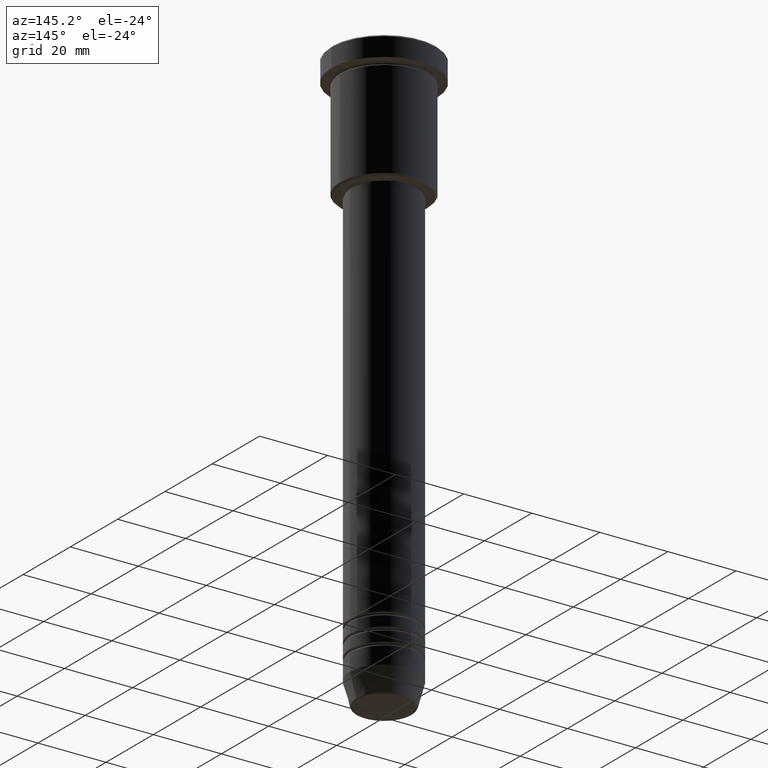
[diagram: clean part render]
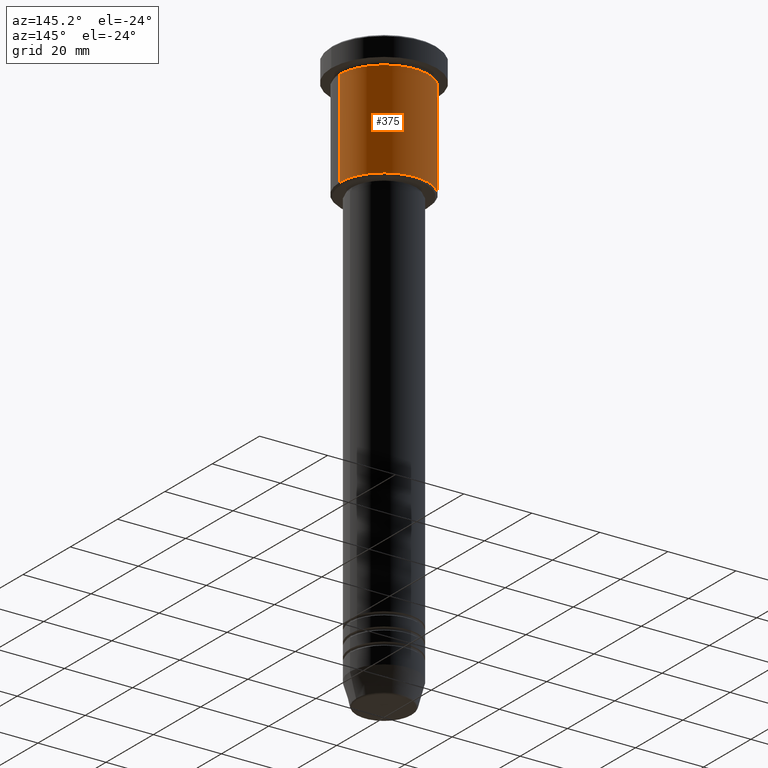
[diagram: same view with one face highlighted and labeled with its STEP entity id]
A machine part, auxiliary view. The second image highlights one B-rep face of the part: STEP entity #375.
In plain terms, the highlighted cylindrical surface (partial cylindrical patch) has radius 13 mm, axis along (-0, -0, 1).
Its self-contained STEP definition (entity closure, byte-faithful):
#19 = CIRCLE ( 'NONE', #720, 13.00000000000000178 ) ;
#186 = DIRECTION ( 'NONE',  ( -1.000000000000000000, 0.000000000000000000, 0.000000000000000000 ) ) ;
#234 = CARTESIAN_POINT ( 'NONE',  ( 13.00000000000000178, 0.000000000000000000, -6.999999999999995559 ) ) ;
#248 = CARTESIAN_POINT ( 'NONE',  ( 0.000000000000000000, 0.000000000000000000, -35.49999999999999289 ) ) ;
#257 = AXIS2_PLACEMENT_3D ( 'NONE', #281, #842, #641 ) ;
#281 = CARTESIAN_POINT ( 'NONE',  ( 0.000000000000000000, 0.000000000000000000, 0.000000000000000000 ) ) ;
#284 = AXIS2_PLACEMENT_3D ( 'NONE', #978, #1158, #700 ) ;
#294 = DIRECTION ( 'NONE',  ( -0.000000000000000000, -0.000000000000000000, 1.000000000000000000 ) ) ;
#340 = EDGE_CURVE ( 'NONE', #1180, #478, #19, .T. ) ;
#351 = CARTESIAN_POINT ( 'NONE',  ( 13.00000000000000178, 0.000000000000000000, 0.000000000000000000 ) ) ;
#375 = ADVANCED_FACE ( 'NONE', ( #472 ), #836, .T. ) ;
#411 = CARTESIAN_POINT ( 'NONE',  ( -13.00000000000000178, 1.592040838891559293E-15, -35.49999999999999289 ) ) ;
#470 = ORIENTED_EDGE ( 'NONE', *, *, #654, .F. ) ;
#472 = FACE_OUTER_BOUND ( 'NONE', #655, .T. ) ;
#474 = CIRCLE ( 'NONE', #284, 13.00000000000000178 ) ;
#478 = VERTEX_POINT ( 'NONE', #411 ) ;
#486 = VERTEX_POINT ( 'NONE', #234 ) ;
#535 = ORIENTED_EDGE ( 'NONE', *, *, #610, .F. ) ;
#542 = LINE ( 'NONE', #915, #1097 ) ;
#547 = CARTESIAN_POINT ( 'NONE',  ( -13.00000000000000178, 1.592040838891559293E-15, -6.999999999999995559 ) ) ;
#610 = EDGE_CURVE ( 'NONE', #486, #1091, #474, .T. ) ;
#637 = DIRECTION ( 'NONE',  ( -0.000000000000000000, -0.000000000000000000, 1.000000000000000000 ) ) ;
#641 = DIRECTION ( 'NONE',  ( 1.000000000000000000, 0.000000000000000000, 0.000000000000000000 ) ) ;
#654 = EDGE_CURVE ( 'NONE', #1180, #486, #1105, .T. ) ;
#655 = EDGE_LOOP ( 'NONE', ( #809, #765, #535, #470 ) ) ;
#700 = DIRECTION ( 'NONE',  ( 1.000000000000000000, 0.000000000000000000, 0.000000000000000000 ) ) ;
#720 = AXIS2_PLACEMENT_3D ( 'NONE', #248, #819, #186 ) ;
#764 = EDGE_CURVE ( 'NONE', #478, #1091, #542, .T. ) ;
#765 = ORIENTED_EDGE ( 'NONE', *, *, #764, .T. ) ;
#805 = VECTOR ( 'NONE', #637, 1000.000000000000000 ) ;
#809 = ORIENTED_EDGE ( 'NONE', *, *, #340, .T. ) ;
#815 = CARTESIAN_POINT ( 'NONE',  ( 13.00000000000000178, 0.000000000000000000, -35.49999999999999289 ) ) ;
#819 = DIRECTION ( 'NONE',  ( -0.000000000000000000, -0.000000000000000000, 1.000000000000000000 ) ) ;
#836 = CYLINDRICAL_SURFACE ( 'NONE', #257, 13.00000000000000178 ) ;
#842 = DIRECTION ( 'NONE',  ( -0.000000000000000000, -0.000000000000000000, 1.000000000000000000 ) ) ;
#915 = CARTESIAN_POINT ( 'NONE',  ( -13.00000000000000178, 1.592040838891559293E-15, 0.000000000000000000 ) ) ;
#978 = CARTESIAN_POINT ( 'NONE',  ( 0.000000000000000000, 0.000000000000000000, -6.999999999999995559 ) ) ;
#1091 = VERTEX_POINT ( 'NONE', #547 ) ;
#1097 = VECTOR ( 'NONE', #294, 1000.000000000000000 ) ;
#1105 = LINE ( 'NONE', #351, #805 ) ;
#1158 = DIRECTION ( 'NONE',  ( -0.000000000000000000, -0.000000000000000000, 1.000000000000000000 ) ) ;
#1180 = VERTEX_POINT ( 'NONE', #815 ) ;